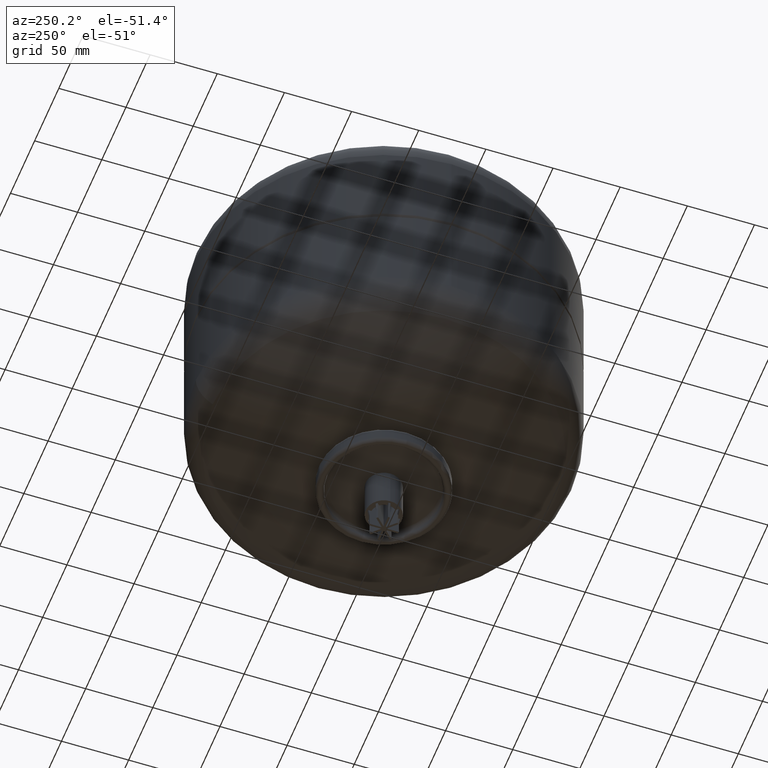
[diagram: clean part render]
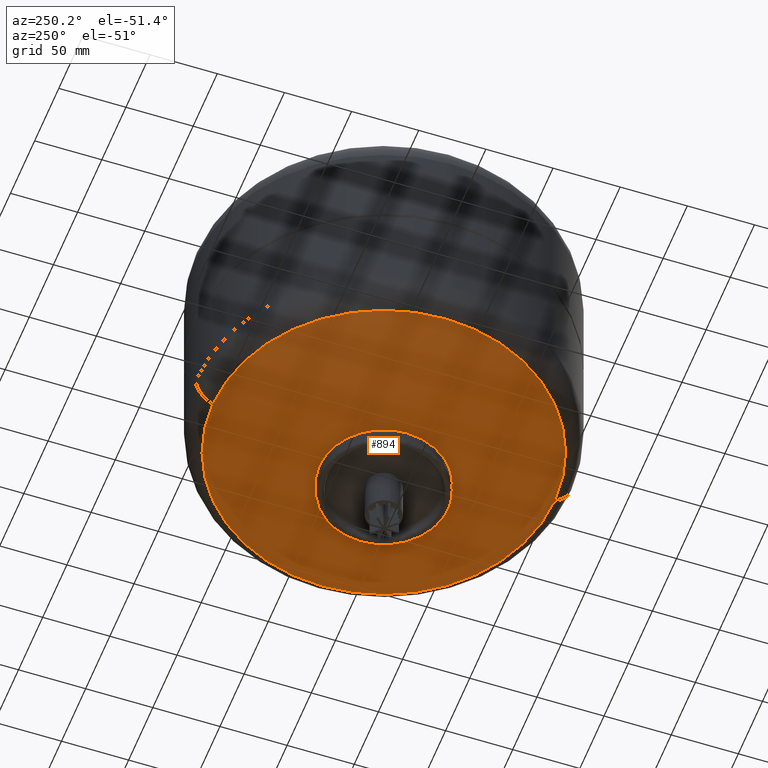
[diagram: same view with one face highlighted and labeled with its STEP entity id]
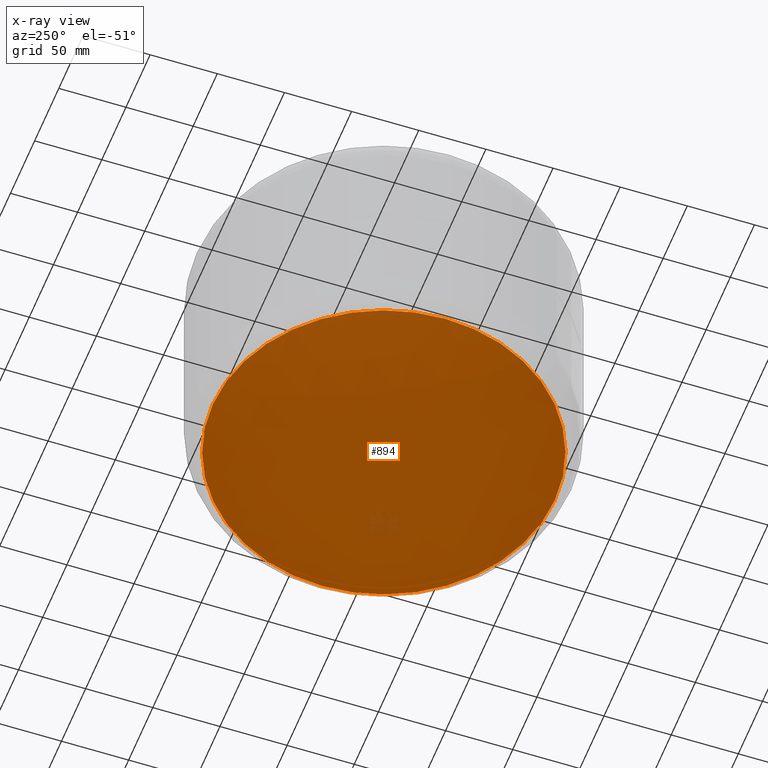
[diagram: x-ray of the same camera — body ghosted, the highlighted face saturated]
A machine part, auxiliary view. The second image highlights one B-rep face of the part: STEP entity #894.
The next image is the same camera in x-ray: the body ghosted, the highlighted face saturated — about 1% of this face is hidden behind the body in this view.
In plain terms, the highlighted spherical surface has radius 258 mm.
Its self-contained STEP definition (entity closure, byte-faithful):
#833=CARTESIAN_POINT('',(3.355614E-015,-127.339055793991430,85.614695513510156));
#834=VERTEX_POINT('',#833);
#850=CARTESIAN_POINT('',(-1.223841E-014,127.339055793991430,85.614695513510213));
#851=VERTEX_POINT('',#850);
#859=CARTESIAN_POINT('',(-127.339055793991450,4.112114E-015,85.614695513510213));
#860=VERTEX_POINT('',#859);
#861=CARTESIAN_POINT('',(-4.148636E-015,4.112114E-015,85.614695513510185));
#862=DIRECTION('',(0.0,0.0,1.0));
#863=DIRECTION('',(-1.0,0.0,0.0));
#864=AXIS2_PLACEMENT_3D('',#861,#862,#863);
#865=CIRCLE('',#864,127.339055793991430);
#866=EDGE_CURVE('',#851,#860,#865,.T.);
#868=CARTESIAN_POINT('',(-4.148636E-015,4.112114E-015,85.614695513510185));
#869=DIRECTION('',(0.0,0.0,1.0));
#870=DIRECTION('',(-1.0,0.0,0.0));
#871=AXIS2_PLACEMENT_3D('',#868,#869,#870);
#872=CIRCLE('',#871,127.339055793991430);
#873=EDGE_CURVE('',#860,#834,#872,.T.);
#878=CARTESIAN_POINT('',(-4.947573E-014,-3.710680E-014,310.000000000000060));
#879=DIRECTION('',(0.0,-1.0,0.0));
#880=DIRECTION('',(1.0,0.0,0.0));
#881=AXIS2_PLACEMENT_3D('',#878,#879,#880);
#882=SPHERICAL_SURFACE('',#881,258.000000000000060);
#883=ORIENTED_EDGE('',*,*,#873,.F.);
#884=ORIENTED_EDGE('',*,*,#866,.F.);
#885=CARTESIAN_POINT('',(-4.148636E-015,4.112114E-015,85.614695513510185));
#886=DIRECTION('',(0.0,0.0,1.0));
#887=DIRECTION('',(-1.0,0.0,0.0));
#888=AXIS2_PLACEMENT_3D('',#885,#886,#887);
#889=CIRCLE('',#888,127.339055793991430);
#890=EDGE_CURVE('',#834,#851,#889,.T.);
#891=ORIENTED_EDGE('',*,*,#890,.F.);
#892=EDGE_LOOP('',(#883,#884,#891));
#893=FACE_OUTER_BOUND('',#892,.T.);
#894=ADVANCED_FACE('',(#893),#882,.T.);